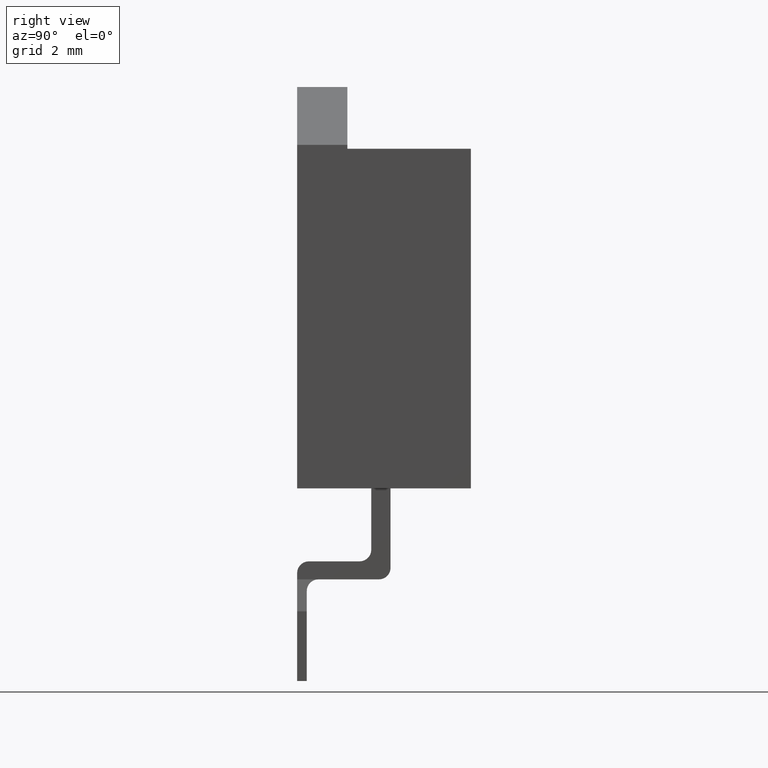
[diagram: clean part render]
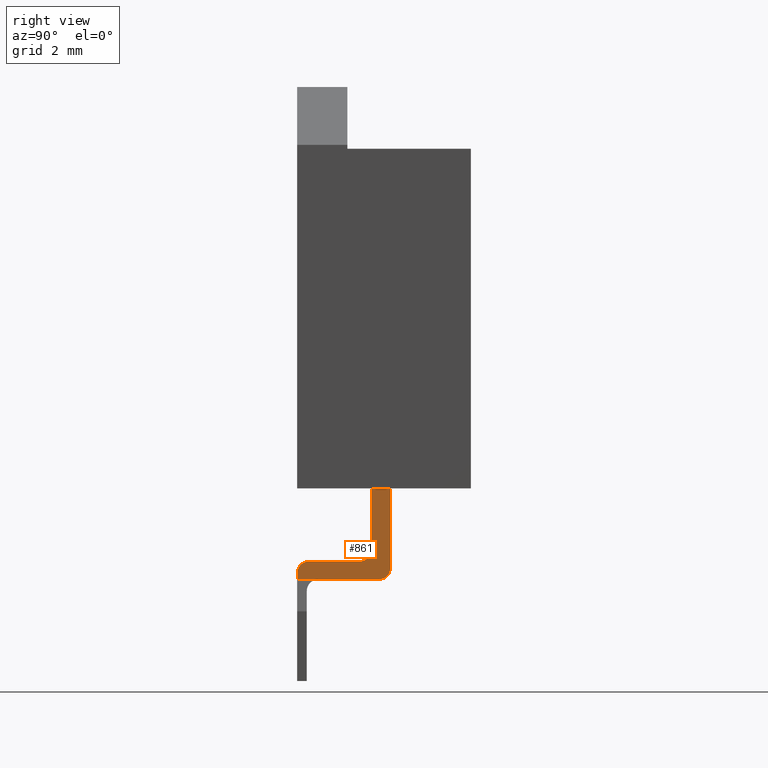
[diagram: same view with one face highlighted and labeled with its STEP entity id]
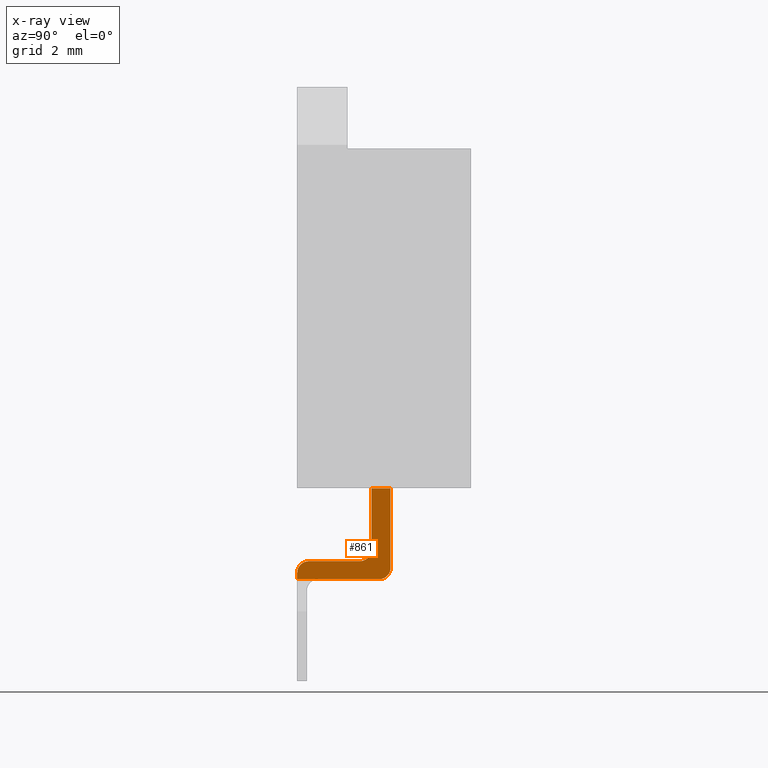
[diagram: x-ray of the same camera — body ghosted, the highlighted face saturated]
A machine part, right view. The second image highlights one B-rep face of the part: STEP entity #861.
The next image is the same camera in x-ray: the body ghosted, the highlighted face saturated — about 0% of this face is hidden behind the body in this view.
In plain terms, the highlighted planar face has unit normal (-1, 0, 0).
Its self-contained STEP definition (entity closure, byte-faithful):
#105=DIRECTION('',(0.E0,-1.E0,0.E0));
#106=VECTOR('',#105,5.E-1);
#107=CARTESIAN_POINT('',(2.99E0,2.42E0,-4.4E0));
#108=LINE('',#107,#106);
#121=DIRECTION('',(0.E0,0.E0,-1.E0));
#122=VECTOR('',#121,1.59E0);
#123=CARTESIAN_POINT('',(2.99E0,1.92E0,-4.4E0));
#124=LINE('',#123,#122);
#133=DIRECTION('',(0.E0,-1.E0,0.E0));
#134=VECTOR('',#133,5.5E-1);
#135=CARTESIAN_POINT('',(2.99E0,5.5E-1,-6.757E0));
#136=LINE('',#135,#134);
#137=DIRECTION('',(0.E0,0.E0,1.E0));
#138=VECTOR('',#137,2.057E0);
#139=CARTESIAN_POINT('',(2.99E0,2.42E0,-6.457E0));
#140=LINE('',#139,#138);
#153=CARTESIAN_POINT('',(2.99E0,1.62E0,-5.99E0));
#154=DIRECTION('',(1.E0,0.E0,0.E0));
#155=DIRECTION('',(0.E0,0.E0,-1.E0));
#156=AXIS2_PLACEMENT_3D('',#153,#154,#155);
#163=DIRECTION('',(0.E0,-1.E0,0.E0));
#164=VECTOR('',#163,1.32E0);
#165=CARTESIAN_POINT('',(2.99E0,1.62E0,-6.29E0));
#166=LINE('',#165,#164);
#179=CARTESIAN_POINT('',(2.99E0,3.E-1,-6.59E0));
#180=DIRECTION('',(-1.E0,0.E0,0.E0));
#181=DIRECTION('',(0.E0,-1.E0,0.E0));
#182=AXIS2_PLACEMENT_3D('',#179,#180,#181);
#205=DIRECTION('',(0.E0,0.E0,-1.E0));
#206=VECTOR('',#205,1.67E-1);
#207=CARTESIAN_POINT('',(2.99E0,0.E0,-6.59E0));
#208=LINE('',#207,#206);
#259=DIRECTION('',(0.E0,1.E0,0.E0));
#260=VECTOR('',#259,1.57E0);
#261=CARTESIAN_POINT('',(2.99E0,5.5E-1,-6.757E0));
#262=LINE('',#261,#260);
#275=CARTESIAN_POINT('',(2.99E0,2.12E0,-6.457E0));
#276=DIRECTION('',(-1.E0,0.E0,0.E0));
#277=DIRECTION('',(0.E0,1.E0,0.E0));
#278=AXIS2_PLACEMENT_3D('',#275,#276,#277);
#557=CARTESIAN_POINT('',(2.99E0,1.92E0,-4.4E0));
#558=CARTESIAN_POINT('',(2.99E0,1.92E0,-5.99E0));
#559=VERTEX_POINT('',#557);
#560=VERTEX_POINT('',#558);
#565=CARTESIAN_POINT('',(2.99E0,1.62E0,-6.29E0));
#566=CARTESIAN_POINT('',(2.99E0,3.E-1,-6.29E0));
#567=VERTEX_POINT('',#565);
#568=VERTEX_POINT('',#566);
#573=CARTESIAN_POINT('',(2.99E0,0.E0,-6.757E0));
#574=VERTEX_POINT('',#573);
#575=CARTESIAN_POINT('',(2.99E0,0.E0,-6.59E0));
#576=VERTEX_POINT('',#575);
#617=CARTESIAN_POINT('',(2.99E0,5.5E-1,-6.757E0));
#618=CARTESIAN_POINT('',(2.99E0,2.12E0,-6.757E0));
#619=VERTEX_POINT('',#617);
#620=VERTEX_POINT('',#618);
#625=CARTESIAN_POINT('',(2.99E0,2.42E0,-6.457E0));
#626=CARTESIAN_POINT('',(2.99E0,2.42E0,-4.4E0));
#627=VERTEX_POINT('',#625);
#628=VERTEX_POINT('',#626);
#836=CARTESIAN_POINT('',(2.99E0,2.42E0,-6.757E0));
#837=DIRECTION('',(-1.E0,0.E0,0.E0));
#838=DIRECTION('',(0.E0,0.E0,1.E0));
#839=AXIS2_PLACEMENT_3D('',#836,#837,#838);
#840=PLANE('',#839);
#841=ORIENTED_EDGE('',*,*,#826,.F.);
#842=ORIENTED_EDGE('',*,*,#806,.F.);
#844=ORIENTED_EDGE('',*,*,#843,.F.);
#846=ORIENTED_EDGE('',*,*,#845,.T.);
#848=ORIENTED_EDGE('',*,*,#847,.F.);
#850=ORIENTED_EDGE('',*,*,#849,.T.);
#852=ORIENTED_EDGE('',*,*,#851,.F.);
#854=ORIENTED_EDGE('',*,*,#853,.T.);
#856=ORIENTED_EDGE('',*,*,#855,.F.);
#858=ORIENTED_EDGE('',*,*,#857,.T.);
#859=EDGE_LOOP('',(#841,#842,#844,#846,#848,#850,#852,#854,#856,#858));
#860=FACE_OUTER_BOUND('',#859,.F.);
#157=CIRCLE('',#156,3.E-1);
#183=CIRCLE('',#182,3.E-1);
#279=CIRCLE('',#278,3.E-1);
#806=EDGE_CURVE('',#628,#559,#108,.T.);
#826=EDGE_CURVE('',#559,#560,#124,.T.);
#843=EDGE_CURVE('',#627,#628,#140,.T.);
#845=EDGE_CURVE('',#627,#620,#279,.T.);
#847=EDGE_CURVE('',#619,#620,#262,.T.);
#849=EDGE_CURVE('',#619,#574,#136,.T.);
#851=EDGE_CURVE('',#576,#574,#208,.T.);
#853=EDGE_CURVE('',#576,#568,#183,.T.);
#855=EDGE_CURVE('',#567,#568,#166,.T.);
#857=EDGE_CURVE('',#567,#560,#157,.T.);
#861=ADVANCED_FACE('',(#860),#840,.F.);